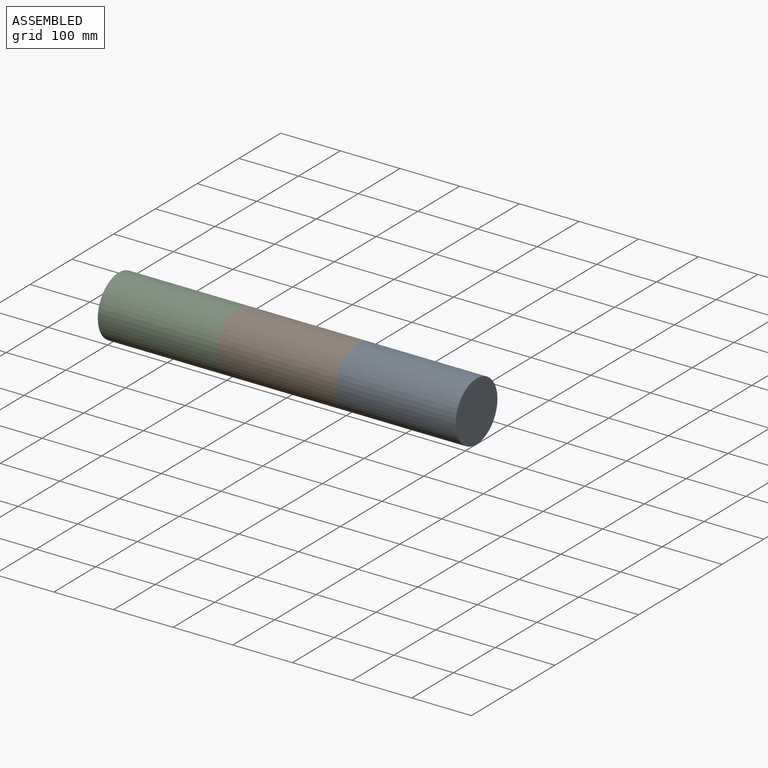
[diagram: assembled view]
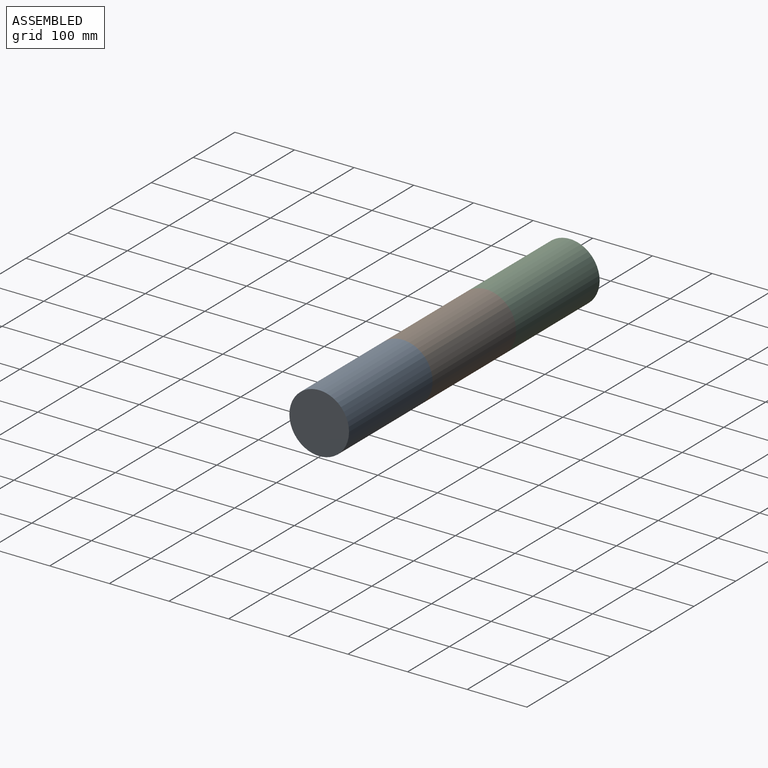
[diagram: assembled view, second angle]
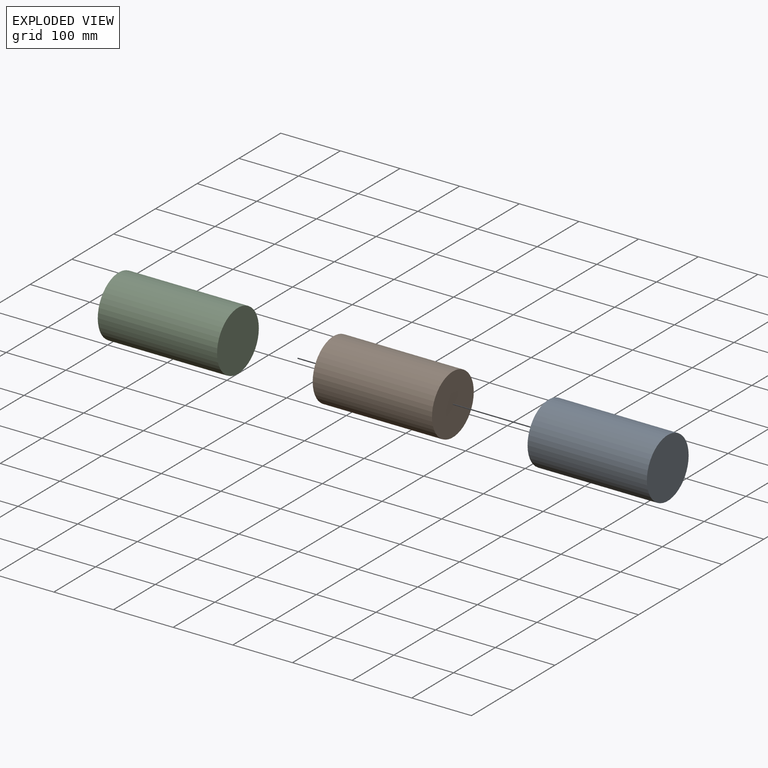
[diagram: exploded view]
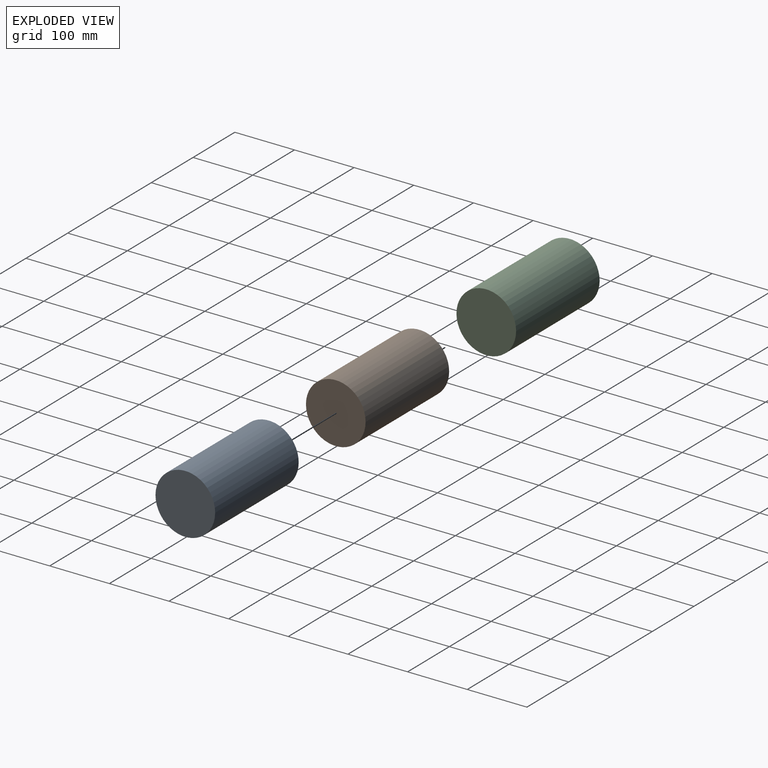
[diagram: exploded view, second angle]
ASSEMBLY  parts=3 mates=2
PART A: 3 faces, bbox 200x100x100 mm
  f0: cylinder r=50mm len=200mm, axis (-1,0,0), area 62831.9mm2, adj f1,f2
  f1: plane 100x100mm, normal (1,0,0), area 7854mm2, adj f0
  f2: plane 100x100mm, normal (-1,0,0), area 7854mm2, adj f0
PART B: same geometry as A
PART C: same geometry as A
PLACE A rot(axis=(0,1,0),180deg) t=(511.62,9.85,4.72)mm
PLACE B rot(axis=(0,1,0),180deg) t=(311.62,9.85,4.72)mm
PLACE C t=(-88.38,9.85,4.72)mm
MATE planar A.f0 <-> B.f0  axis (1,0,0) through (311.62,9.85,4.72)mm
MATE planar B.f0 <-> C.f0  axis (-1,0,0) through (111.62,9.85,4.72)mm
